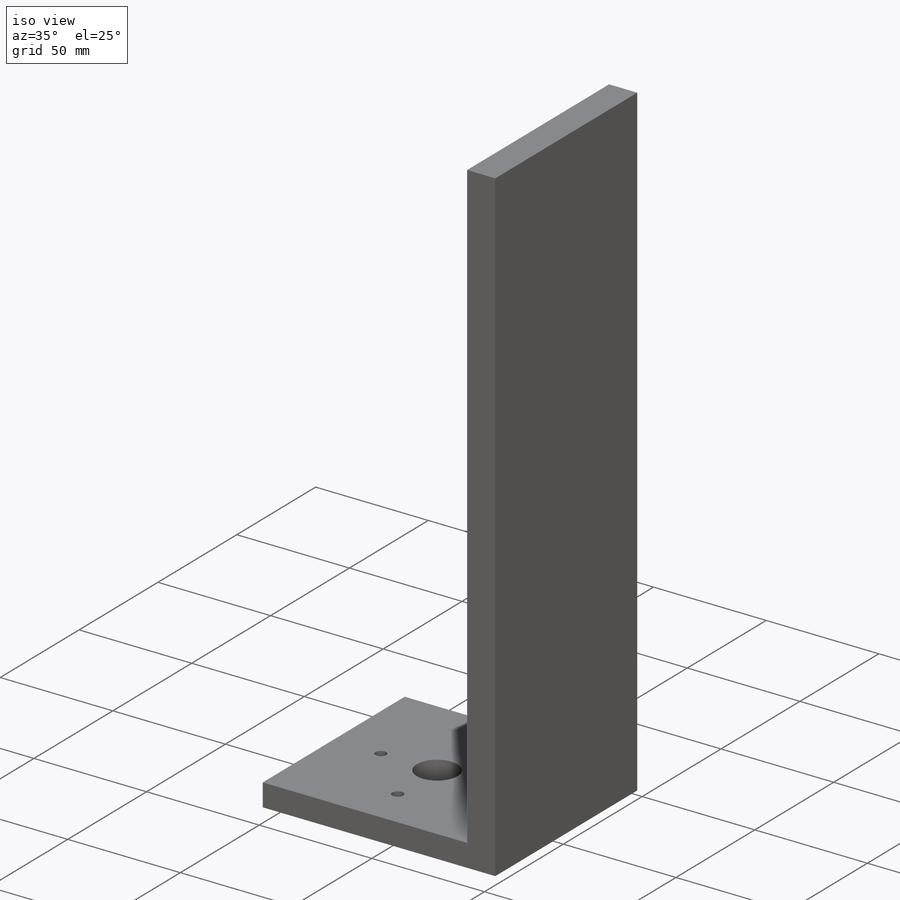
[diagram: iso view]
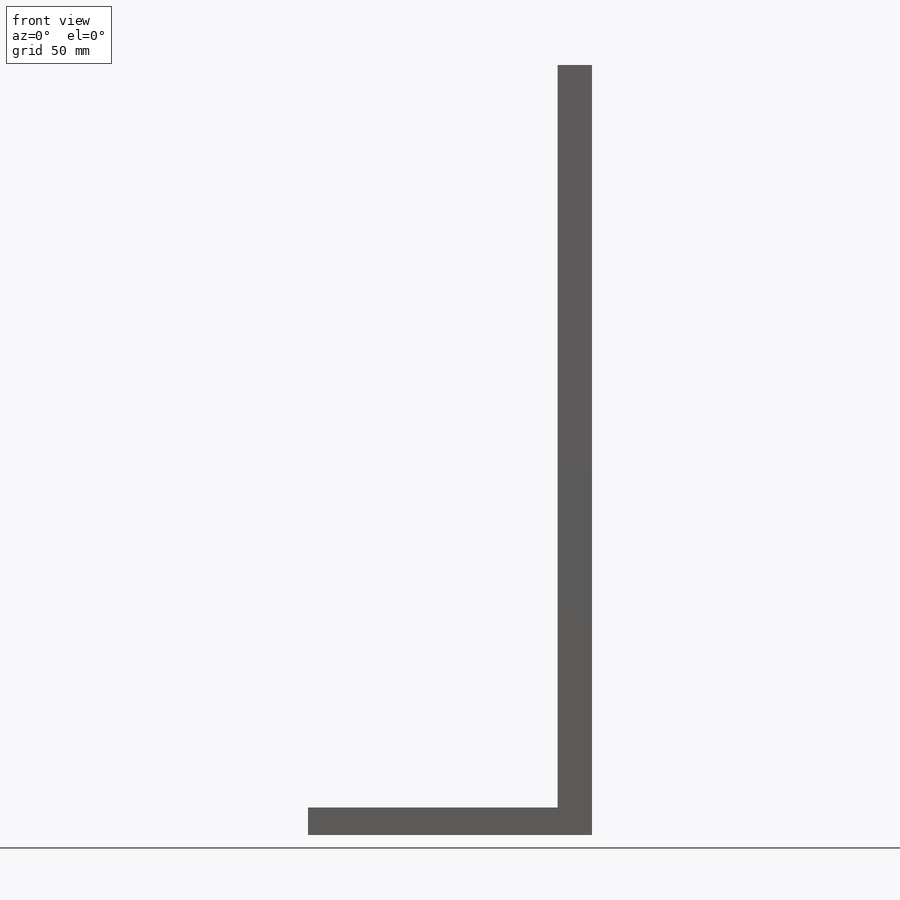
[diagram: front view]
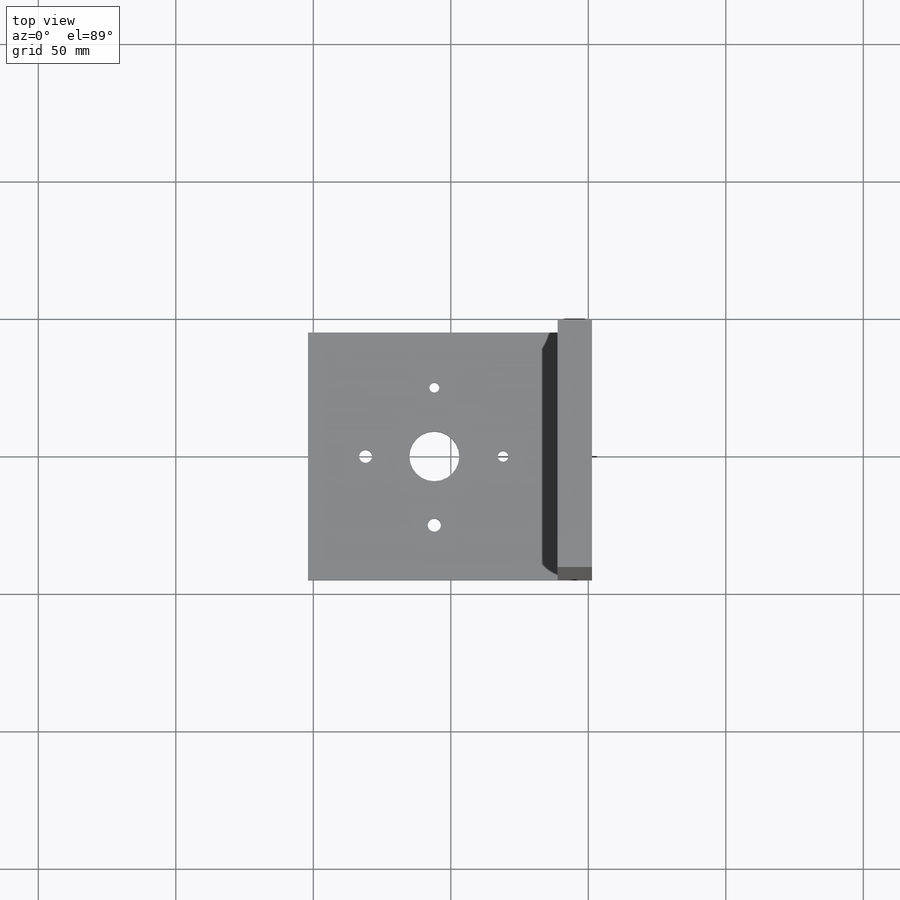
[diagram: top view]
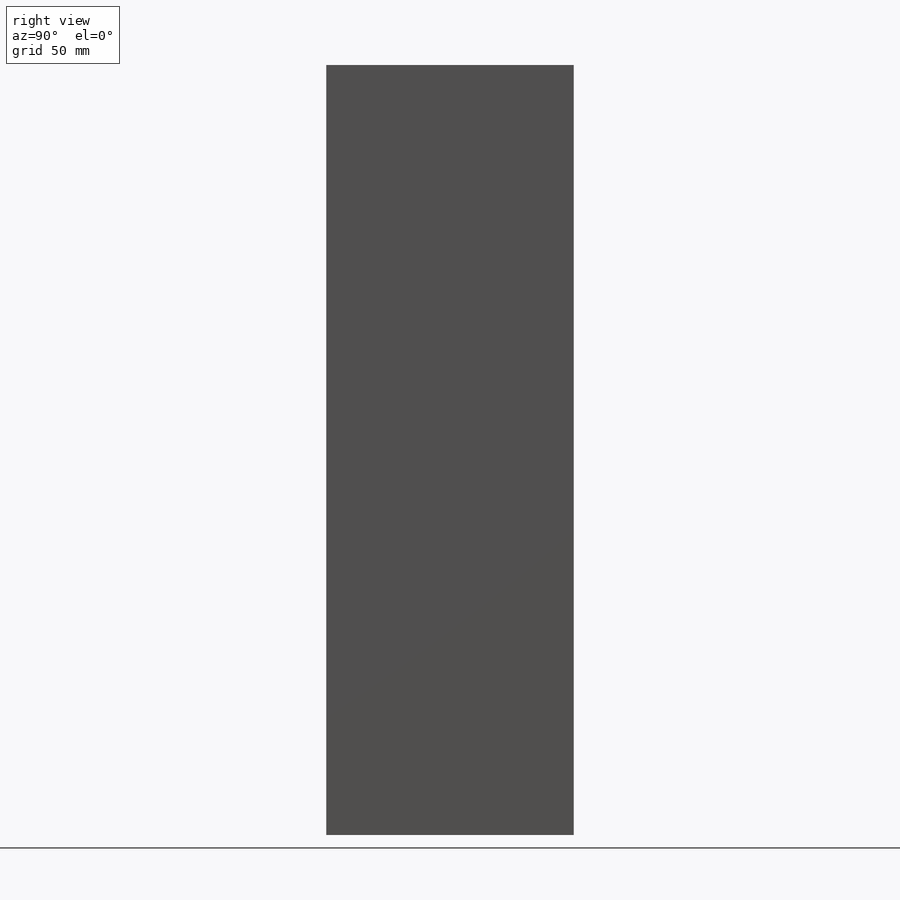
[diagram: right view]
SOLIDWORKS PART (.sldprt)
format: sldprt  version: not decoded by parser v0  size: 231,424 bytes
history: native  units: mm
features: sketch x7, cut_extrude x5, plane x3, extrude x2, material x1 (+10 scaffold rows collapsed)
feature tree (28):
  scaffold x10  (default folders/planes/origin — collapsed)
  material  "材质 <未指定>"
  plane  "前视基准面"
  plane  "上视基准面"
  plane  "右视基准面"
  sketch  "草图1"  dims[D1=400.0mm D2=90.0mm]
  extrude  "凸台-拉伸1"  Depth=10mm
  sketch  "草图2"  dims[D1=206.0mm]
  cut_extrude  "切除-拉伸1"  Depth=10mm
  sketch  "草图3"  dims[D1=50.0mm]
  cut_extrude  "切除-拉伸2"  Depth=10mm
  sketch  "草图4"  dims[D1=40.0mm D2=25.0mm D3=45.0mm D4=20.0mm]
  cut_extrude  "切除-拉伸3"  Depth=10mm
  sketch  "草图5"
  extrude  "凸台-拉伸2"  Depth=270mm
  sketch  "草图6"
  cut_extrude  "切除-拉伸4"  Depth=10mm
  sketch  "草图7"
  cut_extrude  "切除-拉伸5"  Depth=10mm
decode coverage: 11 of 14 modeling features carry decoded parameters
note: suppression state not decoded; provenance and decode notes live in map.json
